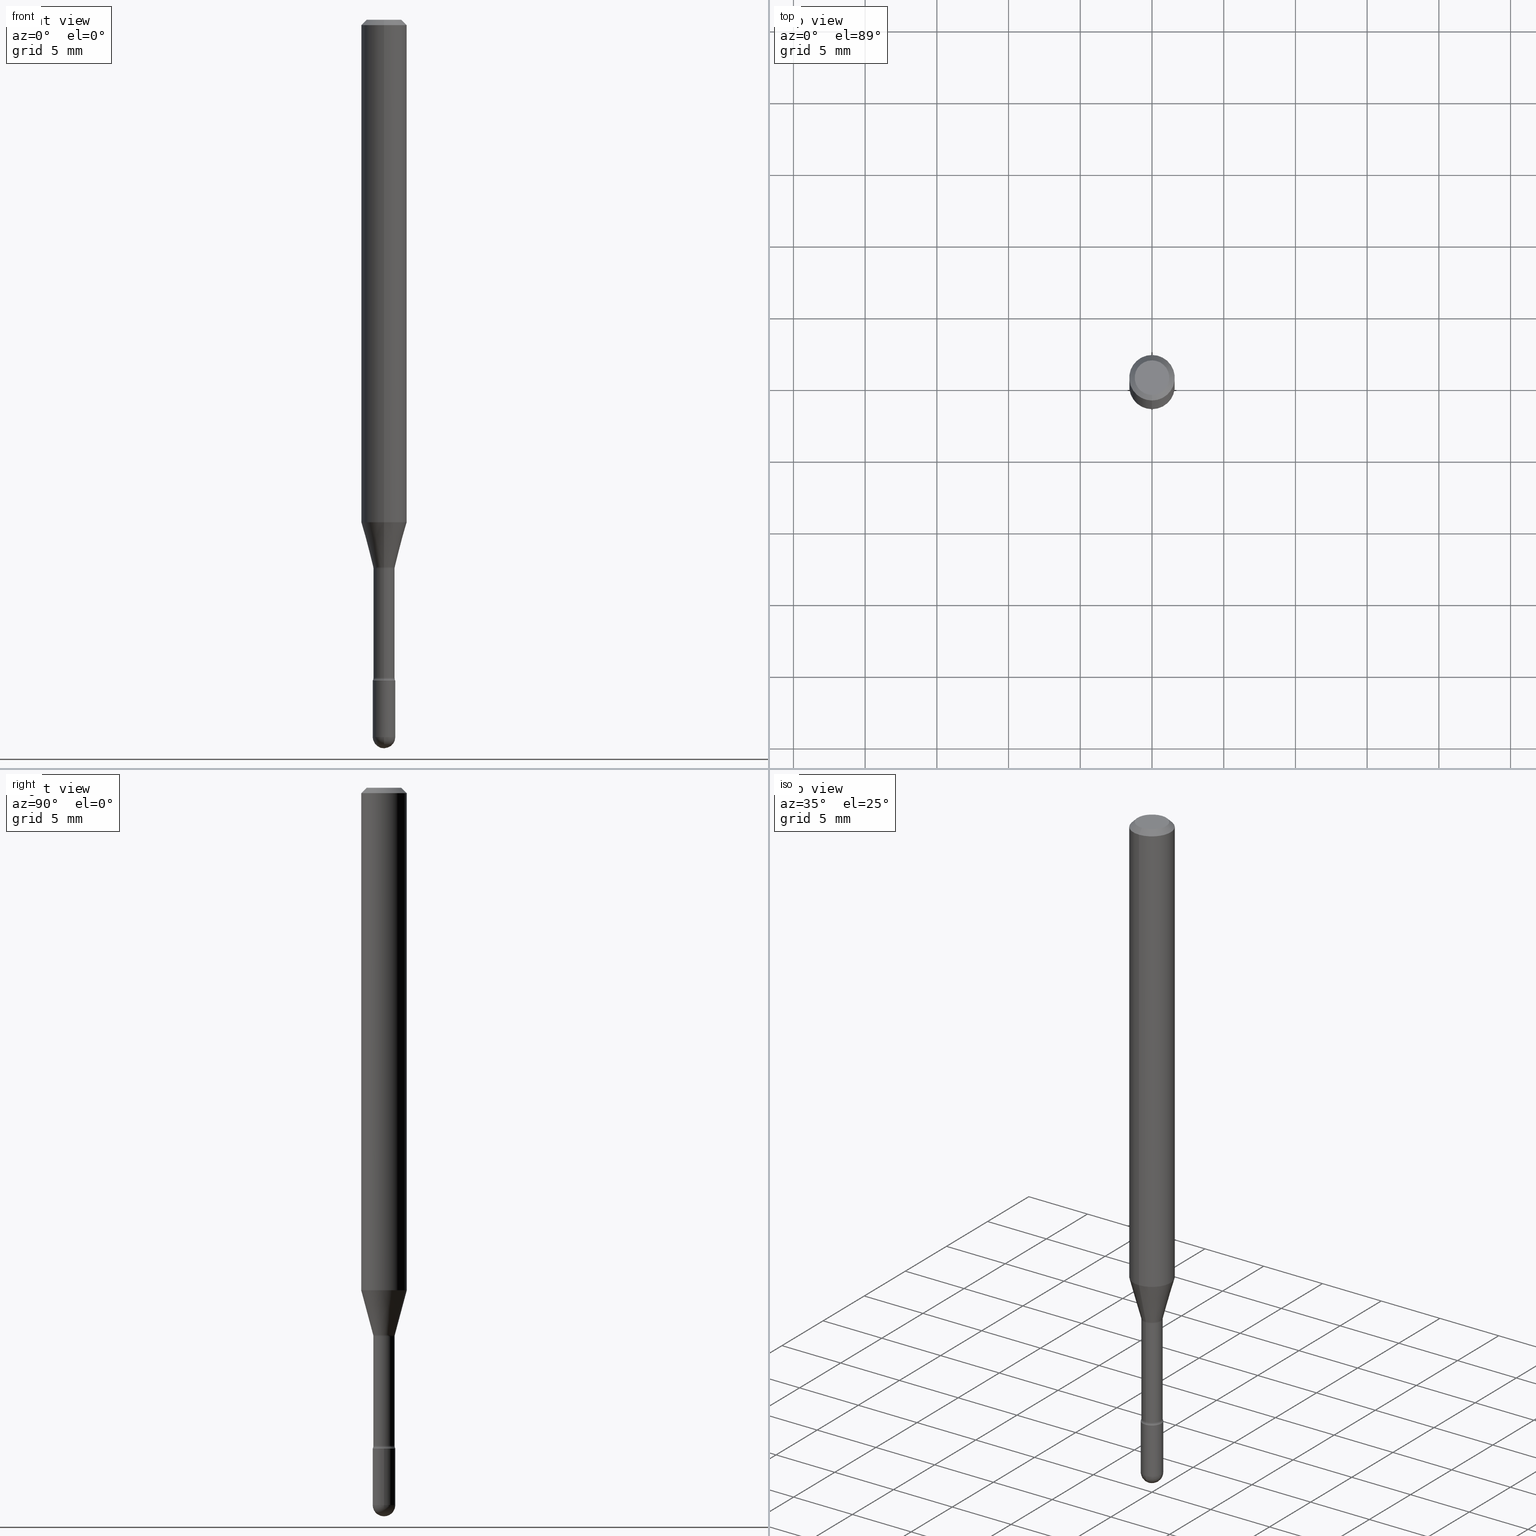
[diagram: canonical four-view strip — front | top / right | iso, engineering-drawing reading convention]
A machine part, canonical four-view strip (front | top / right | iso — engineering-drawing reading convention). The complete STEP part file that produces these views, byte-faithful:
ISO-10303-21;
HEADER;
FILE_DESCRIPTION (( 'STEP AP203' ),
    '1' );
FILE_NAME ('03764.STEP',
    '2024-04-09T20:22:56',
    ( '' ),
    ( '' ),
    'SwSTEP 2.0',
    'SolidWorks 2023',
    '' );
FILE_SCHEMA (( 'CONFIG_CONTROL_DESIGN' ));
ENDSEC;

DATA;
#1 = CIRCLE ( 'NONE', #325, 0.04749999999999999362 ) ;
#2 = CARTESIAN_POINT ( 'NONE',  ( -1.169113584055446105E-44, 1.669184350826100908E-30, 4.780733988912460139E-16 ) ) ;
#3 = FACE_OUTER_BOUND ( 'NONE', #494, .T. ) ;
#4 = FACE_OUTER_BOUND ( 'NONE', #164, .T. ) ;
#5 = EDGE_CURVE ( 'NONE', #31, #410, #154, .T. ) ;
#6 = FACE_OUTER_BOUND ( 'NONE', #62, .T. ) ;
#7 = VERTEX_POINT ( 'NONE', #123 ) ;
#8 = DIRECTION ( 'NONE',  ( 7.105427357601001859E-15, 1.000000000000000000, 0.000000000000000000 ) ) ;
#9 = MANIFOLD_SOLID_BREP ( 'Body-Move/Copy2[1]', #35 ) ;
#10 = DIRECTION ( 'NONE',  ( -6.982962677686265922E-15, -1.000000000000000000, 4.370956789862821150E-15 ) ) ;
#11 = ADVANCED_FACE ( 'NONE', ( #294 ), #305, .F. ) ;
#12 = FACE_OUTER_BOUND ( 'NONE', #126, .T. ) ;
#13 = ORIENTED_EDGE ( 'NONE', *, *, #33, .F. ) ;
#14 = FACE_OUTER_BOUND ( 'NONE', #291, .T. ) ;
#15 = EDGE_CURVE ( 'NONE', #37, #7, #128, .T. ) ;
#16 = ORIENTED_EDGE ( 'NONE', *, *, #125, .T. ) ;
#17 = SPHERICAL_SURFACE ( 'NONE', #220, 0.03100000000000001019 ) ;
#18 = EDGE_CURVE ( 'NONE', #7, #410, #513, .T. ) ;
#19 = SHAPE_DEFINITION_REPRESENTATION ( #397, #531 ) ;
#20 = EDGE_LOOP ( 'NONE', ( #159, #240 ) ) ;
#21 = ADVANCED_FACE ( 'NONE', ( #257 ), #428, .T. ) ;
#22 = ORIENTED_EDGE ( 'NONE', *, *, #287, .F. ) ;
#23 = DIRECTION ( 'NONE',  ( 1.000000000000000000, -6.982962677686266711E-15, 4.876176775795935232E-29 ) ) ;
#24 = AXIS2_PLACEMENT_3D ( 'NONE', #206, #514, #422 ) ;
#25 = ADVANCED_FACE ( 'NONE', ( #6 ), #529, .T. ) ;
#26 = DIRECTION ( 'NONE',  ( 6.982962677686265922E-15, 1.000000000000000000, 0.000000000000000000 ) ) ;
#27 = VERTEX_POINT ( 'NONE', #474 ) ;
#28 = PERSON_AND_ORGANIZATION ( #338, #429 ) ;
#29 = CIRCLE ( 'NONE', #451, 0.06250000000000000000 ) ;
#30 = CIRCLE ( 'NONE', #169, 0.04749999999999999362 ) ;
#31 = VERTEX_POINT ( 'NONE', #144 ) ;
#32 = DIRECTION ( 'NONE',  ( -6.982962677686265922E-15, -1.000000000000000000, 4.370956789862821150E-15 ) ) ;
#33 = EDGE_CURVE ( 'NONE', #37, #31, #319, .T. ) ;
#34 = EDGE_LOOP ( 'NONE', ( #252, #297, #282, #340 ) ) ;
#35 = CLOSED_SHELL ( 'NONE', ( #420, #135, #350, #273, #111 ) ) ;
#36 = APPROVAL ( #507, 'UNSPECIFIED' ) ;
#37 = VERTEX_POINT ( 'NONE', #229 ) ;
#38 = LOCAL_TIME ( 16, 22, 56.00000000000000000, #468 ) ;
#39 = DIRECTION ( 'NONE',  ( -6.982962677686265922E-15, -1.000000000000000000, 3.491516098891900395E-15 ) ) ;
#40 = DIRECTION ( 'NONE',  ( 7.105427357601001859E-15, 1.000000000000000000, 0.000000000000000000 ) ) ;
#41 = ADVANCED_FACE ( 'NONE', ( #243 ), #301, .F. ) ;
#42 = SPHERICAL_SURFACE ( 'NONE', #306, 0.03100000000000001019 ) ;
#43 = CIRCLE ( 'NONE', #347, 0.01500000000000001159 ) ;
#44 = ORIENTED_EDGE ( 'NONE', *, *, #87, .T. ) ;
#45 = DIRECTION ( 'NONE',  ( -2.445444533372823887E-29, 3.491516098891900000E-15, 1.000000000000000000 ) ) ;
#46 = PRODUCT_RELATED_PRODUCT_CATEGORY ( 'detail', '', ( #103 ) ) ;
#47 = DIRECTION ( 'NONE',  ( -2.438088387897960049E-29, 3.491481338843145188E-15, 1.000000000000000000 ) ) ;
#48 = AXIS2_PLACEMENT_3D ( 'NONE', #488, #269, #132 ) ;
#49 = CARTESIAN_POINT ( 'NONE',  ( 3.673283897115995853E-29, -5.244580152015073878E-15, -1.502092501787273271 ) ) ;
#50 = EDGE_CURVE ( 'NONE', #446, #497, #30, .T. ) ;
#51 = CARTESIAN_POINT ( 'NONE',  ( 3.137046178381209758E-16, 0.04414999999999474206, -1.505974787463811415 ) ) ;
#52 = CARTESIAN_POINT ( 'NONE',  ( 4.418432751852640684E-29, -6.308350963630715621E-15, -1.806783525791634704 ) ) ;
#53 = APPROVAL_ROLE ( '' ) ;
#54 = DIRECTION ( 'NONE',  ( -2.445444533372824167E-29, 3.491516098891900395E-15, 1.000000000000000000 ) ) ;
#55 = EDGE_CURVE ( 'NONE', #65, #91, #61, .T. ) ;
#56 = ORIENTED_EDGE ( 'NONE', *, *, #192, .T. ) ;
#57 = DIRECTION ( 'NONE',  ( 6.982962677686265922E-15, 1.000000000000000000, -3.483106191921935554E-15 ) ) ;
#58 = DIRECTION ( 'NONE',  ( -1.000000000000000000, 6.982962677686265922E-15, -4.883557194083112340E-29 ) ) ;
#59 = AXIS2_PLACEMENT_3D ( 'NONE', #356, #216, #183 ) ;
#60 = DIRECTION ( 'NONE',  ( -1.000000000000000000, 6.982962677686265922E-15, -4.883557194083112340E-29 ) ) ;
#61 = LINE ( 'NONE', #400, #364 ) ;
#62 = EDGE_LOOP ( 'NONE', ( #530, #542, #462, #373 ) ) ;
#63 = ADVANCED_FACE ( 'NONE', ( #247 ), #440, .T. ) ;
#64 = DATE_AND_TIME ( #412, #469 ) ;
#65 = VERTEX_POINT ( 'NONE', #504 ) ;
#66 = CARTESIAN_POINT ( 'NONE',  ( 3.668166800059256219E-31, -5.237274148337879238E-17, -0.01500000000000008271 ) ) ;
#67 = EDGE_LOOP ( 'NONE', ( #502, #156 ) ) ;
#68 = VECTOR ( 'NONE', #309, 39.37007874015748854 ) ;
#69 = ADVANCED_FACE ( 'NONE', ( #290 ), #280, .F. ) ;
#70 = EDGE_CURVE ( 'NONE', #81, #441, #452, .T. ) ;
#71 = ORIENTED_EDGE ( 'NONE', *, *, #55, .T. ) ;
#72 = CARTESIAN_POINT ( 'NONE',  ( 4.815128079378533515E-29, -6.874726756182153211E-15, -1.968999999999999861 ) ) ;
#73 = EDGE_LOOP ( 'NONE', ( #516, #255, #161, #13 ) ) ;
#74 = CC_DESIGN_PERSON_AND_ORGANIZATION_ASSIGNMENT ( #149, #439, ( #335 ) ) ;
#75 = VECTOR ( 'NONE', #258, 39.37007874015748143 ) ;
#76 = EDGE_LOOP ( 'NONE', ( #88, #157, #421, #112 ) ) ;
#77 = ADVANCED_FACE ( 'NONE', ( #372 ), #78, .T. ) ;
#78 = CONICAL_SURFACE ( 'NONE', #233, 0.06250000000000000000, 0.7853981633974483900 ) ;
#79 = LENGTH_MEASURE_WITH_UNIT ( LENGTH_MEASURE( 0.02539999999999999897 ), #458 );
#80 = CALENDAR_DATE ( 2024, 9, 4 ) ;
#81 = VERTEX_POINT ( 'NONE', #528 ) ;
#82 = CARTESIAN_POINT ( 'NONE',  ( 4.364351673553919652E-16, 0.06249999999999995143, -0.01500000000000030129 ) ) ;
#83 = FACE_OUTER_BOUND ( 'NONE', #20, .T. ) ;
#84 = DIRECTION ( 'NONE',  ( -2.445444533372824167E-29, 3.491516098891900395E-15, 1.000000000000000000 ) ) ;
#85 = CALENDAR_DATE ( 2024, 9, 4 ) ;
#86 = AXIS2_PLACEMENT_3D ( 'NONE', #225, #313, #32 ) ;
#87 = EDGE_CURVE ( 'NONE', #81, #251, #143, .T. ) ;
#88 = ORIENTED_EDGE ( 'NONE', *, *, #50, .F. ) ;
#89 = CC_DESIGN_APPROVAL ( #277, ( #98 ) ) ;
#90 = CARTESIAN_POINT ( 'NONE',  ( 3.316907271900976096E-16, 0.04749999999999999362, 3.181699426364303002E-17 ) ) ;
#91 = VERTEX_POINT ( 'NONE', #176 ) ;
#92 = DIRECTION ( 'NONE',  ( -6.982962677686265922E-15, -1.000000000000000000, 0.000000000000000000 ) ) ;
#93 = FACE_OUTER_BOUND ( 'NONE', #205, .T. ) ;
#94 = CC_DESIGN_DATE_AND_TIME_ASSIGNMENT ( #381, #454, ( #131 ) ) ;
#95 = DIRECTION ( 'NONE',  ( -1.807323732225328562E-15, -0.2588190451025179639, 0.9659258262890690894 ) ) ;
#96 = CARTESIAN_POINT ( 'NONE',  ( 4.436080414419837365E-29, -6.333547148661465016E-15, -1.813999999999999835 ) ) ;
#97 = CARTESIAN_POINT ( 'NONE',  ( 4.418388896135229414E-29, -6.308413767514161632E-15, -1.806783525791634704 ) ) ;
#98 = SECURITY_CLASSIFICATION ( '', '', #139 ) ;
#99 = CIRCLE ( 'NONE', #503, 0.03099999999999999978 ) ;
#100 = DIRECTION ( 'NONE',  ( 6.982962677686265922E-15, 1.000000000000000000, 0.000000000000000000 ) ) ;
#101 = ADVANCED_FACE ( 'NONE', ( #4 ), #551, .T. ) ;
#102 = DIRECTION ( 'NONE',  ( -2.445444533372823887E-29, 3.491516098891900000E-15, 1.000000000000000000 ) ) ;
#103 = PRODUCT ( '03764', '03764', '', ( #324 ) ) ;
#104 = VECTOR ( 'NONE', #54, 39.37007874015748143 ) ;
#105 = ORIENTED_EDGE ( 'NONE', *, *, #260, .F. ) ;
#106 = EDGE_CURVE ( 'NONE', #562, #91, #480, .T. ) ;
#107 = ORIENTED_EDGE ( 'NONE', *, *, #106, .T. ) ;
#108 = CC_DESIGN_PERSON_AND_ORGANIZATION_ASSIGNMENT ( #307, #113, ( #98 ) ) ;
#109 = CARTESIAN_POINT ( 'NONE',  ( 2.023376353671711441E-45, -2.889234476176621046E-31, -8.274538096922955789E-17 ) ) ;
#110 = ORIENTED_EDGE ( 'NONE', *, *, #204, .T. ) ;
#111 = ADVANCED_FACE ( 'NONE', ( #388 ), #178, .T. ) ;
#112 = ORIENTED_EDGE ( 'NONE', *, *, #417, .F. ) ;
#113 = PERSON_AND_ORGANIZATION_ROLE ( 'classification_officer' ) ;
#114 = DIRECTION ( 'NONE',  ( 1.000000000000000000, -6.982962677686270655E-15, 0.000000000000000000 ) ) ;
#115 = DIRECTION ( 'NONE',  ( -2.445444533372823887E-29, 3.491516098891900000E-15, 1.000000000000000000 ) ) ;
#116 = AXIS2_PLACEMENT_3D ( 'NONE', #52, #228, #533 ) ;
#117 = APPROVAL_ROLE ( '' ) ;
#118 = EDGE_LOOP ( 'NONE', ( #105, #415, #450, #303 ) ) ;
#119 = AXIS2_PLACEMENT_3D ( 'NONE', #302, #167, #39 ) ;
#120 = APPROVAL_PERSON_ORGANIZATION ( #28, #36, #53 ) ;
#121 = AXIS2_PLACEMENT_3D ( 'NONE', #472, #566, #263 ) ;
#122 = ORIENTED_EDGE ( 'NONE', *, *, #125, .F. ) ;
#123 = CARTESIAN_POINT ( 'NONE',  ( 2.136957277798944871E-16, 0.02914999999999371566, -1.806783525791634704 ) ) ;
#124 = VECTOR ( 'NONE', #346, 39.37007874015748143 ) ;
#125 = EDGE_CURVE ( 'NONE', #538, #500, #433, .T. ) ;
#126 = EDGE_LOOP ( 'NONE', ( #525, #44, #544, #22 ) ) ;
#127 = APPROVAL_DATE_TIME ( #489, #36 ) ;
#128 = CIRCLE ( 'NONE', #194, 0.02915000000000002311 ) ;
#129 =( GEOMETRIC_REPRESENTATION_CONTEXT ( 3 ) GLOBAL_UNCERTAINTY_ASSIGNED_CONTEXT ( ( #200 ) ) GLOBAL_UNIT_ASSIGNED_CONTEXT ( ( #515, #259, #288 ) ) REPRESENTATION_CONTEXT ( 'NONE', 'WORKASPACE' ) );
#130 = AXIS2_PLACEMENT_3D ( 'NONE', #532, #524, #360 ) ;
#131 = PRODUCT_DEFINITION ( 'UNKNOWN', '', #335, #180 ) ;
#132 = DIRECTION ( 'NONE',  ( -7.105427357601001070E-15, -1.000000000000000000, 0.000000000000000000 ) ) ;
#133 = DIRECTION ( 'NONE',  ( -2.445444533372823887E-29, 3.491516098891900000E-15, 1.000000000000000000 ) ) ;
#134 = CARTESIAN_POINT ( 'NONE',  ( 0.03099999999999999978, -6.550018991669739348E-15, -1.813999999999999835 ) ) ;
#135 = ADVANCED_FACE ( 'NONE', ( #12 ), #42, .T. ) ;
#136 = DIRECTION ( 'NONE',  ( -6.982962677686265922E-15, -1.000000000000000000, 0.000000000000000000 ) ) ;
#137 = CIRCLE ( 'NONE', #86, 0.06250000000000000000 ) ;
#138 = PLANE ( 'NONE',  #256 ) ;
#139 = SECURITY_CLASSIFICATION_LEVEL ( 'unclassified' ) ;
#140 = CARTESIAN_POINT ( 'NONE',  ( 3.682777811400677476E-29, -5.258135214955204492E-15, -1.505974787463811193 ) ) ;
#141 = LINE ( 'NONE', #386, #430 ) ;
#142 = CARTESIAN_POINT ( 'NONE',  ( -3.082978022198118430E-16, -0.04415000000000526142, -1.505974787463810971 ) ) ;
#143 = CIRCLE ( 'NONE', #48, 0.03100000000000001019 ) ;
#144 = CARTESIAN_POINT ( 'NONE',  ( -2.035533620545178324E-16, -0.02915000000000525851, -1.505974787463811193 ) ) ;
#145 = CARTESIAN_POINT ( 'NONE',  ( -2.164718430082299331E-16, -0.03100000000000634193, -1.813999999999999835 ) ) ;
#146 = CYLINDRICAL_SURFACE ( 'NONE', #219, 0.02915000000000001271 ) ;
#147 = EDGE_LOOP ( 'NONE', ( #418, #413, #353, #237, #554 ) ) ;
#148 = DIRECTION ( 'NONE',  ( -4.851104656540964275E-15, -0.7071067811865500152, -0.7071067811865450192 ) ) ;
#149 = PERSON_AND_ORGANIZATION ( #338, #429 ) ;
#150 = AXIS2_PLACEMENT_3D ( 'NONE', #332, #555, #23 ) ;
#151 = ORIENTED_EDGE ( 'NONE', *, *, #442, .T. ) ;
#152 = DIRECTION ( 'NONE',  ( 1.000000000000000000, -6.982962677686270655E-15, 0.000000000000000000 ) ) ;
#153 = APPLICATION_PROTOCOL_DEFINITION ( 'international standard', 'config_control_design', 1994, #390 ) ;
#154 = CIRCLE ( 'NONE', #443, 0.02914999999999999883 ) ;
#155 = AXIS2_PLACEMENT_3D ( 'NONE', #383, #560, #179 ) ;
#156 = ORIENTED_EDGE ( 'NONE', *, *, #50, .T. ) ;
#157 = ORIENTED_EDGE ( 'NONE', *, *, #165, .T. ) ;
#158 = AXIS2_PLACEMENT_3D ( 'NONE', #471, #345, #523 ) ;
#159 = ORIENTED_EDGE ( 'NONE', *, *, #453, .F. ) ;
#160 = CARTESIAN_POINT ( 'NONE',  ( 4.815128079378533515E-29, -6.874726756182153211E-15, -1.968999999999999861 ) ) ;
#161 = ORIENTED_EDGE ( 'NONE', *, *, #5, .F. ) ;
#162 = CIRCLE ( 'NONE', #212, 0.03099999999999999978 ) ;
#163 = DIRECTION ( 'NONE',  ( 1.000000000000000000, -6.982962677686265922E-15, 4.883557194083112340E-29 ) ) ;
#164 = EDGE_LOOP ( 'NONE', ( #122, #211, #110, #278 ) ) ;
#165 = EDGE_CURVE ( 'NONE', #446, #262, #141, .T. ) ;
#166 = VERTEX_POINT ( 'NONE', #223 ) ;
#167 = DIRECTION ( 'NONE',  ( -2.445444533372823887E-29, 3.491516098891900000E-15, 1.000000000000000000 ) ) ;
#168 = CARTESIAN_POINT ( 'NONE',  ( 3.840629472727447874E-16, 0.04749999999999999362, -2.485923956665947867E-16 ) ) ;
#169 = AXIS2_PLACEMENT_3D ( 'NONE', #109, #549, #323 ) ;
#170 = ORIENTED_EDGE ( 'NONE', *, *, #260, .T. ) ;
#171 = ORIENTED_EDGE ( 'NONE', *, *, #106, .F. ) ;
#172 = DIRECTION ( 'NONE',  ( -2.445444533372823887E-29, 3.491516098891900000E-15, 1.000000000000000000 ) ) ;
#173 = CARTESIAN_POINT ( 'NONE',  ( 4.815128079378533515E-29, -6.874726756182153211E-15, -1.968999999999999861 ) ) ;
#174 = CIRCLE ( 'NONE', #371, 0.02966111260566398414 ) ;
#175 = CARTESIAN_POINT ( 'NONE',  ( 3.274220454076509529E-16, 0.02966111260565873833, -1.502092501787273271 ) ) ;
#176 = CARTESIAN_POINT ( 'NONE',  ( -0.03099999999999999978, -6.383868704336178649E-15, -1.813999999999999835 ) ) ;
#177 = ORIENTED_EDGE ( 'NONE', *, *, #539, .F. ) ;
#178 = CYLINDRICAL_SURFACE ( 'NONE', #130, 0.03099999999999999978 ) ;
#179 = DIRECTION ( 'NONE',  ( 6.982962677686265922E-15, 1.000000000000000000, -3.483106191921935554E-15 ) ) ;
#180 = DESIGN_CONTEXT ( 'detailed design', #276, 'design' ) ;
#181 = DIRECTION ( 'NONE',  ( -2.445468806185136597E-29, 3.491481338843145583E-15, 1.000000000000000000 ) ) ;
#182 = LINE ( 'NONE', #82, #249 ) ;
#183 = DIRECTION ( 'NONE',  ( 1.000000000000000000, -6.982962677686270655E-15, 0.000000000000000000 ) ) ;
#184 = EDGE_CURVE ( 'NONE', #538, #196, #174, .T. ) ;
#185 = CARTESIAN_POINT ( 'NONE',  ( 4.815128079378534076E-29, -6.874726756182154000E-15, -1.969000000000000306 ) ) ;
#186 = EDGE_LOOP ( 'NONE', ( #107, #389 ) ) ;
#187 = ORIENTED_EDGE ( 'NONE', *, *, #316, .F. ) ;
#188 = PERSON_AND_ORGANIZATION ( #338, #429 ) ;
#189 = CC_DESIGN_PERSON_AND_ORGANIZATION_ASSIGNMENT ( #334, #564, ( #131 ) ) ;
#190 = CARTESIAN_POINT ( 'NONE',  ( 0.03099999999999999978, -2.164718430082742572E-16, 1.511614800496739984E-30 ) ) ;
#191 = CARTESIAN_POINT ( 'NONE',  ( 2.164718430083224270E-16, 0.03099999999999312680, -1.969000000000000306 ) ) ;
#192 = EDGE_CURVE ( 'NONE', #538, #410, #246, .T. ) ;
#193 = CARTESIAN_POINT ( 'NONE',  ( 4.418432751852640684E-29, -6.308350963630715621E-15, -1.806783525791634704 ) ) ;
#194 = AXIS2_PLACEMENT_3D ( 'NONE', #379, #558, #341 ) ;
#195 = APPROVAL_PERSON_ORGANIZATION ( #419, #490, #117 ) ;
#196 = VERTEX_POINT ( 'NONE', #424 ) ;
#197 = CIRCLE ( 'NONE', #253, 0.02915000000000002311 ) ;
#198 = DIRECTION ( 'NONE',  ( -2.445444533372823326E-29, 3.491516098891900395E-15, 1.000000000000000000 ) ) ;
#199 = VERTEX_POINT ( 'NONE', #145 ) ;
#200 = UNCERTAINTY_MEASURE_WITH_UNIT (LENGTH_MEASURE( 1.000000000000000082E-05 ), #515, 'distance_accuracy_value', 'NONE');
#201 = EDGE_LOOP ( 'NONE', ( #505, #402, #235, #289 ) ) ;
#202 = DIRECTION ( 'NONE',  ( 4.937700262164548042E-15, 0.7071067811865451302, -0.7071067811865499042 ) ) ;
#203 = AXIS2_PLACEMENT_3D ( 'NONE', #447, #238, #404 ) ;
#204 = EDGE_CURVE ( 'NONE', #196, #363, #227, .T. ) ;
#205 = EDGE_LOOP ( 'NONE', ( #470, #170, #361, #177 ) ) ;
#206 = CARTESIAN_POINT ( 'NONE',  ( 4.436036383538302532E-29, -6.333610203389905652E-15, -1.813999999999999835 ) ) ;
#207 = EDGE_CURVE ( 'NONE', #27, #441, #342, .T. ) ;
#208 = AXIS2_PLACEMENT_3D ( 'NONE', #563, #172, #92 ) ;
#209 = PERSON_AND_ORGANIZATION ( #338, #429 ) ;
#210 = AXIS2_PLACEMENT_3D ( 'NONE', #320, #437, #315 ) ;
#211 = ORIENTED_EDGE ( 'NONE', *, *, #184, .T. ) ;
#212 = AXIS2_PLACEMENT_3D ( 'NONE', #333, #284, #241 ) ;
#213 = CARTESIAN_POINT ( 'NONE',  ( 0.000000000000000000, 0.000000000000000000, 0.000000000000000000 ) ) ;
#214 = COORDINATED_UNIVERSAL_TIME_OFFSET ( 5, 0, .BEHIND. ) ;
#215 = CIRCLE ( 'NONE', #537, 0.01500000000000001853 ) ;
#216 = DIRECTION ( 'NONE',  ( -2.445468806185136597E-29, 3.491481338843145583E-15, 1.000000000000000000 ) ) ;
#217 = DIRECTION ( 'NONE',  ( -2.445444533372823887E-29, 3.491516098891900000E-15, 1.000000000000000000 ) ) ;
#218 = DIRECTION ( 'NONE',  ( -6.982962677686265922E-15, -1.000000000000000000, 0.000000000000000000 ) ) ;
#219 = AXIS2_PLACEMENT_3D ( 'NONE', #396, #427, #392 ) ;
#220 = AXIS2_PLACEMENT_3D ( 'NONE', #160, #60, #543 ) ;
#221 = DIRECTION ( 'NONE',  ( 1.000000000000000000, -6.982962677686265922E-15, 4.876176775795935793E-29 ) ) ;
#222 = ORIENTED_EDGE ( 'NONE', *, *, #165, .F. ) ;
#223 = CARTESIAN_POINT ( 'NONE',  ( 2.202682480856753802E-16, 0.03099999999999367151, -1.813999999999999835 ) ) ;
#224 = FACE_OUTER_BOUND ( 'NONE', #118, .T. ) ;
#225 = CARTESIAN_POINT ( 'NONE',  ( 3.373579027950668951E-29, -4.816672521591835884E-15, -1.379536105567578330 ) ) ;
#226 = EDGE_CURVE ( 'NONE', #251, #27, #522, .T. ) ;
#227 = LINE ( 'NONE', #395, #512 ) ;
#228 = DIRECTION ( 'NONE',  ( -2.445444533372823887E-29, 3.491516098891900000E-15, 1.000000000000000000 ) ) ;
#229 = CARTESIAN_POINT ( 'NONE',  ( -2.035533620545106341E-16, -0.02915000000000633404, -1.806783525791634704 ) ) ;
#230 = EDGE_CURVE ( 'NONE', #363, #262, #431, .T. ) ;
#231 = DIRECTION ( 'NONE',  ( -6.982962677686266711E-15, -1.000000000000000000, 3.491516098891899606E-15 ) ) ;
#232 = CARTESIAN_POINT ( 'NONE',  ( 3.682814365644040998E-29, -5.258082867198169507E-15, -1.505974787463811193 ) ) ;
#233 = AXIS2_PLACEMENT_3D ( 'NONE', #411, #359, #57 ) ;
#234 = DIRECTION ( 'NONE',  ( -2.445444533372823887E-29, 3.491516098891900000E-15, 1.000000000000000000 ) ) ;
#235 = ORIENTED_EDGE ( 'NONE', *, *, #230, .T. ) ;
#236 = CARTESIAN_POINT ( 'NONE',  ( -1.169113584055446105E-44, 1.669184350826100908E-30, 4.780733988912460139E-16 ) ) ;
#237 = ORIENTED_EDGE ( 'NONE', *, *, #316, .T. ) ;
#238 = DIRECTION ( 'NONE',  ( -1.000000000000000000, 6.982962677686265922E-15, -4.883557194083112340E-29 ) ) ;
#239 = CIRCLE ( 'NONE', #456, 0.06250000000000000000 ) ;
#240 = ORIENTED_EDGE ( 'NONE', *, *, #449, .F. ) ;
#241 = DIRECTION ( 'NONE',  ( 1.000000000000000000, -6.982962677686270655E-15, 0.000000000000000000 ) ) ;
#242 = APPROVAL_DATE_TIME ( #495, #490 ) ;
#243 = FACE_OUTER_BOUND ( 'NONE', #67, .T. ) ;
#244 = LOCAL_TIME ( 16, 22, 56.00000000000000000, #214 ) ;
#245 = EDGE_CURVE ( 'NONE', #196, #538, #493, .T. ) ;
#246 = CIRCLE ( 'NONE', #387, 0.01500000000000001853 ) ;
#247 = FACE_OUTER_BOUND ( 'NONE', #201, .T. ) ;
#248 = EDGE_LOOP ( 'NONE', ( #304, #71, #171, #187, #466 ) ) ;
#249 = VECTOR ( 'NONE', #202, 39.37007874015748143 ) ;
#250 = DIRECTION ( 'NONE',  ( -2.445444533372823887E-29, 3.491516098891900000E-15, 1.000000000000000000 ) ) ;
#251 = VERTEX_POINT ( 'NONE', #477 ) ;
#252 = ORIENTED_EDGE ( 'NONE', *, *, #499, .F. ) ;
#253 = AXIS2_PLACEMENT_3D ( 'NONE', #97, #398, #267 ) ;
#254 = FACE_OUTER_BOUND ( 'NONE', #329, .T. ) ;
#255 = ORIENTED_EDGE ( 'NONE', *, *, #18, .T. ) ;
#256 = AXIS2_PLACEMENT_3D ( 'NONE', #96, #47, #221 ) ;
#257 = FACE_OUTER_BOUND ( 'NONE', #76, .T. ) ;
#258 = DIRECTION ( 'NONE',  ( -2.445468806185136877E-29, 3.491481338843145188E-15, 1.000000000000000000 ) ) ;
#259 =( NAMED_UNIT ( * ) PLANE_ANGLE_UNIT ( ) SI_UNIT ( $, .RADIAN. ) );
#260 = EDGE_CURVE ( 'NONE', #7, #37, #197, .T. ) ;
#261 = ORIENTED_EDGE ( 'NONE', *, *, #226, .F. ) ;
#262 = VERTEX_POINT ( 'NONE', #391 ) ;
#263 = DIRECTION ( 'NONE',  ( -6.982962677686265922E-15, -1.000000000000000000, 0.000000000000000000 ) ) ;
#264 = CYLINDRICAL_SURFACE ( 'NONE', #311, 0.02915000000000001271 ) ;
#265 = TOROIDAL_SURFACE ( 'NONE', #339, 0.04415000000000000174, 0.01500000000000002373 ) ;
#266 = DIRECTION ( 'NONE',  ( 1.000000000000000000, -6.982962677686270655E-15, 0.000000000000000000 ) ) ;
#267 = DIRECTION ( 'NONE',  ( -6.982962677686266711E-15, -1.000000000000000000, 0.000000000000000000 ) ) ;
#268 = AXIS2_PLACEMENT_3D ( 'NONE', #66, #279, #550 ) ;
#269 = DIRECTION ( 'NONE',  ( -1.000000000000000000, 7.105427357601001070E-15, -4.926315508542082329E-29 ) ) ;
#270 = FACE_OUTER_BOUND ( 'NONE', #73, .T. ) ;
#271 = EDGE_CURVE ( 'NONE', #497, #446, #1, .T. ) ;
#272 = DIRECTION ( 'NONE',  ( -2.445444533372823887E-29, 3.491516098891900000E-15, 1.000000000000000000 ) ) ;
#273 = ADVANCED_FACE ( 'NONE', ( #14 ), #17, .T. ) ;
#274 = DIRECTION ( 'NONE',  ( 1.000000000000000000, -7.105427357601001070E-15, 4.926315934229907018E-29 ) ) ;
#275 = CIRCLE ( 'NONE', #203, 0.01500000000000001159 ) ;
#276 = APPLICATION_CONTEXT ( 'configuration controlled 3d designs of mechanical parts and assemblies' ) ;
#277 = APPROVAL ( #365, 'UNSPECIFIED' ) ;
#278 = ORIENTED_EDGE ( 'NONE', *, *, #362, .F. ) ;
#279 = DIRECTION ( 'NONE',  ( -2.445444533372823887E-29, 3.491516098891900000E-15, 1.000000000000000000 ) ) ;
#280 = TOROIDAL_SURFACE ( 'NONE', #380, 0.04415000000000003644, 0.01500000000000001332 ) ;
#281 = DIRECTION ( 'NONE',  ( -6.982962677686265922E-15, -1.000000000000000000, 3.491516098891900000E-15 ) ) ;
#282 = ORIENTED_EDGE ( 'NONE', *, *, #308, .T. ) ;
#283 = EDGE_CURVE ( 'NONE', #262, #357, #541, .T. ) ;
#284 = DIRECTION ( 'NONE',  ( -2.445468806185136597E-29, 3.491481338843145583E-15, 1.000000000000000000 ) ) ;
#285 = PERSON_AND_ORGANIZATION_ROLE ( 'design_owner' ) ;
#286 = ORIENTED_EDGE ( 'NONE', *, *, #539, .T. ) ;
#287 = EDGE_CURVE ( 'NONE', #441, #65, #99, .T. ) ;
#288 =( NAMED_UNIT ( * ) SI_UNIT ( $, .STERADIAN. ) SOLID_ANGLE_UNIT ( ) );
#289 = ORIENTED_EDGE ( 'NONE', *, *, #442, .F. ) ;
#290 = FACE_OUTER_BOUND ( 'NONE', #34, .T. ) ;
#291 = EDGE_LOOP ( 'NONE', ( #457, #367, #336, #261 ) ) ;
#292 = PLANE ( 'NONE',  #355 ) ;
#293 = APPROVAL_ROLE ( '' ) ;
#294 = FACE_OUTER_BOUND ( 'NONE', #448, .T. ) ;
#295 = DIRECTION ( 'NONE',  ( -6.982962677686265922E-15, -1.000000000000000000, 3.483106191921935554E-15 ) ) ;
#296 = CC_DESIGN_SECURITY_CLASSIFICATION ( #98, ( #335 ) ) ;
#297 = ORIENTED_EDGE ( 'NONE', *, *, #15, .F. ) ;
#298 = AXIS2_PLACEMENT_3D ( 'NONE', #236, #234, #281 ) ;
#299 = DIRECTION ( 'NONE',  ( -2.445468806185136597E-29, 3.491481338843145583E-15, 1.000000000000000000 ) ) ;
#300 = EDGE_CURVE ( 'NONE', #65, #251, #162, .T. ) ;
#301 = PLANE ( 'NONE',  #317 ) ;
#302 = CARTESIAN_POINT ( 'NONE',  ( 3.682814365644040998E-29, -5.258082867198169507E-15, -1.505974787463811193 ) ) ;
#303 = ORIENTED_EDGE ( 'NONE', *, *, #308, .F. ) ;
#304 = ORIENTED_EDGE ( 'NONE', *, *, #287, .T. ) ;
#305 = TOROIDAL_SURFACE ( 'NONE', #119, 0.04415000000000000174, 0.01500000000000002373 ) ;
#306 = AXIS2_PLACEMENT_3D ( 'NONE', #173, #321, #100 ) ;
#307 = PERSON_AND_ORGANIZATION ( #338, #429 ) ;
#308 = EDGE_CURVE ( 'NONE', #37, #199, #275, .T. ) ;
#309 = DIRECTION ( 'NONE',  ( 1.839019923739598738E-15, 0.2588190451025247363, 0.9659258262890673130 ) ) ;
#310 = DIRECTION ( 'NONE',  ( -6.982962677686265922E-15, -1.000000000000000000, 3.491516098891900395E-15 ) ) ;
#311 = AXIS2_PLACEMENT_3D ( 'NONE', #2, #352, #475 ) ;
#312 = DIRECTION ( 'NONE',  ( -2.445444533372824167E-29, 3.491516098891900395E-15, 1.000000000000000000 ) ) ;
#313 = DIRECTION ( 'NONE',  ( -2.445444533372823887E-29, 3.491516098891900000E-15, 1.000000000000000000 ) ) ;
#314 = DIRECTION ( 'NONE',  ( -6.982962677686265922E-15, -1.000000000000000000, 0.000000000000000000 ) ) ;
#315 = DIRECTION ( 'NONE',  ( 1.000000000000000000, -6.982962677686270655E-15, 0.000000000000000000 ) ) ;
#316 = EDGE_CURVE ( 'NONE', #27, #562, #501, .T. ) ;
#317 = AXIS2_PLACEMENT_3D ( 'NONE', #90, #322, #520 ) ;
#318 = ADVANCED_FACE ( 'NONE', ( #254 ), #265, .F. ) ;
#319 = LINE ( 'NONE', #435, #104 ) ;
#320 = CARTESIAN_POINT ( 'NONE',  ( 4.815128079378534076E-29, -6.874726756182154000E-15, -1.969000000000000306 ) ) ;
#321 = DIRECTION ( 'NONE',  ( -1.000000000000000000, 6.982962677686265922E-15, -4.883557194083112340E-29 ) ) ;
#322 = DIRECTION ( 'NONE',  ( 2.445444533372823326E-29, -3.491516098891900395E-15, -1.000000000000000000 ) ) ;
#323 = DIRECTION ( 'NONE',  ( -6.982962677686266711E-15, -1.000000000000000000, 3.491516098891899606E-15 ) ) ;
#324 = MECHANICAL_CONTEXT ( 'NONE', #390, 'mechanical' ) ;
#325 = AXIS2_PLACEMENT_3D ( 'NONE', #481, #483, #231 ) ;
#326 = APPROVAL_DATE_TIME ( #64, #277 ) ;
#327 = DIMENSIONAL_EXPONENTS ( 1.000000000000000000, 0.000000000000000000, 0.000000000000000000, 0.000000000000000000, 0.000000000000000000, 0.000000000000000000, 0.000000000000000000 ) ;
#328 = COORDINATED_UNIVERSAL_TIME_OFFSET ( 5, 0, .BEHIND. ) ;
#329 = EDGE_LOOP ( 'NONE', ( #509, #56, #286, #491 ) ) ;
#330 = AXIS2_PLACEMENT_3D ( 'NONE', #548, #299, #114 ) ;
#331 = ORIENTED_EDGE ( 'NONE', *, *, #417, .T. ) ;
#332 = CARTESIAN_POINT ( 'NONE',  ( 0.000000000000000000, 0.000000000000000000, 0.000000000000000000 ) ) ;
#333 = CARTESIAN_POINT ( 'NONE',  ( 4.815128079378534076E-29, -6.874726756182154000E-15, -1.969000000000000306 ) ) ;
#334 = PERSON_AND_ORGANIZATION ( #338, #429 ) ;
#335 = PRODUCT_DEFINITION_FORMATION_WITH_SPECIFIED_SOURCE ( 'ANY', '', #103, .NOT_KNOWN. ) ;
#336 = ORIENTED_EDGE ( 'NONE', *, *, #207, .F. ) ;
#337 = ORIENTED_EDGE ( 'NONE', *, *, #192, .F. ) ;
#338 = PERSON ( 'UNSPECIFIED', 'UNSPECIFIED', 'UNSPECIFIED', ('UNSPECIFIED'), ('UNSPECIFIED'), ('UNSPECIFIED') ) ;
#339 = AXIS2_PLACEMENT_3D ( 'NONE', #232, #133, #310 ) ;
#340 = ORIENTED_EDGE ( 'NONE', *, *, #453, .T. ) ;
#341 = DIRECTION ( 'NONE',  ( -6.982962677686266711E-15, -1.000000000000000000, 0.000000000000000000 ) ) ;
#342 = CIRCLE ( 'NONE', #461, 0.03099999999999999978 ) ;
#343 = CARTESIAN_POINT ( 'NONE',  ( 4.440892098500625669E-16, 0.06250000000000000000, 2.598536427105023132E-16 ) ) ;
#344 = CARTESIAN_POINT ( 'NONE',  ( 3.682777811400677476E-29, -5.258135214955204492E-15, -1.505974787463811193 ) ) ;
#345 = DIRECTION ( 'NONE',  ( -2.445444533372823887E-29, 3.491516098891900000E-15, 1.000000000000000000 ) ) ;
#346 = DIRECTION ( 'NONE',  ( -2.445444533372824167E-29, 3.491516098891900395E-15, 1.000000000000000000 ) ) ;
#347 = AXIS2_PLACEMENT_3D ( 'NONE', #517, #467, #40 ) ;
#348 = ORIENTED_EDGE ( 'NONE', *, *, #271, .F. ) ;
#349 = CARTESIAN_POINT ( 'NONE',  ( 2.071232074741134460E-16, 0.02914999999999473568, -1.505974787463811193 ) ) ;
#350 = ADVANCED_FACE ( 'NONE', ( #464 ), #138, .T. ) ;
#351 = AXIS2_PLACEMENT_3D ( 'NONE', #425, #217, #487 ) ;
#352 = DIRECTION ( 'NONE',  ( -2.445444533372823887E-29, 3.491516098891900000E-15, 1.000000000000000000 ) ) ;
#353 = ORIENTED_EDGE ( 'NONE', *, *, #226, .T. ) ;
#354 = CARTESIAN_POINT ( 'NONE',  ( 3.673283897115995853E-29, -5.244580152015073878E-15, -1.502092501787273271 ) ) ;
#355 = AXIS2_PLACEMENT_3D ( 'NONE', #455, #198, #374 ) ;
#356 = CARTESIAN_POINT ( 'NONE',  ( 4.436080414419837365E-29, -6.333547148661465016E-15, -1.813999999999999835 ) ) ;
#357 = VERTEX_POINT ( 'NONE', #527 ) ;
#358 = AXIS2_PLACEMENT_3D ( 'NONE', #140, #432, #314 ) ;
#359 = DIRECTION ( 'NONE',  ( 2.445444533372823887E-29, -3.491516098891900000E-15, -1.000000000000000000 ) ) ;
#360 = DIRECTION ( 'NONE',  ( 1.000000000000000000, -6.982962677686266711E-15, 4.876176775795935232E-29 ) ) ;
#361 = ORIENTED_EDGE ( 'NONE', *, *, #33, .T. ) ;
#362 = EDGE_CURVE ( 'NONE', #500, #363, #137, .T. ) ;
#363 = VERTEX_POINT ( 'NONE', #561 ) ;
#364 = VECTOR ( 'NONE', #409, 39.37007874015748143 ) ;
#365 = APPROVAL_STATUS ( 'not_yet_approved' ) ;
#366 = ORIENTED_EDGE ( 'NONE', *, *, #245, .T. ) ;
#367 = ORIENTED_EDGE ( 'NONE', *, *, #70, .T. ) ;
#368 = DIRECTION ( 'NONE',  ( -2.445444533372823887E-29, 3.491516098891900000E-15, 1.000000000000000000 ) ) ;
#369 = CC_DESIGN_PERSON_AND_ORGANIZATION_ASSIGNMENT ( #401, #285, ( #103 ) ) ;
#370 = LOCAL_TIME ( 16, 22, 56.00000000000000000, #484 ) ;
#371 = AXIS2_PLACEMENT_3D ( 'NONE', #354, #102, #136 ) ;
#372 = FACE_OUTER_BOUND ( 'NONE', #557, .T. ) ;
#373 = ORIENTED_EDGE ( 'NONE', *, *, #230, .F. ) ;
#374 = DIRECTION ( 'NONE',  ( -6.982962677686265922E-15, -1.000000000000000000, 3.491516098891900395E-15 ) ) ;
#375 = ORIENTED_EDGE ( 'NONE', *, *, #204, .F. ) ;
#376 = TOROIDAL_SURFACE ( 'NONE', #116, 0.04415000000000003644, 0.01500000000000001332 ) ;
#377 = DIRECTION ( 'NONE',  ( -6.982962677686265922E-15, -1.000000000000000000, 0.000000000000000000 ) ) ;
#378 = MANIFOLD_SOLID_BREP ( 'Body-Move/Copy2[2]', #478 ) ;
#379 = CARTESIAN_POINT ( 'NONE',  ( 4.418388896135229414E-29, -6.308413767514161632E-15, -1.806783525791634704 ) ) ;
#380 = AXIS2_PLACEMENT_3D ( 'NONE', #193, #250, #553 ) ;
#381 = DATE_AND_TIME ( #85, #244 ) ;
#382 = PERSON_AND_ORGANIZATION_ROLE ( 'creator' ) ;
#383 = CARTESIAN_POINT ( 'NONE',  ( 3.668166800059256219E-31, -5.237274148337879238E-17, -0.01500000000000008271 ) ) ;
#384 = EDGE_CURVE ( 'NONE', #91, #562, #403, .T. ) ;
#385 = DIRECTION ( 'NONE',  ( 0.000000000000000000, 0.000000000000000000, 1.000000000000000000 ) ) ;
#386 = CARTESIAN_POINT ( 'NONE',  ( -4.287811248607203282E-16, -0.06250000000000005551, -0.01499999999999986587 ) ) ;
#387 = AXIS2_PLACEMENT_3D ( 'NONE', #51, #274, #8 ) ;
#388 = FACE_OUTER_BOUND ( 'NONE', #147, .T. ) ;
#389 = ORIENTED_EDGE ( 'NONE', *, *, #384, .T. ) ;
#390 = APPLICATION_CONTEXT ( 'configuration controlled 3d designs of mechanical parts and assemblies' ) ;
#391 = CARTESIAN_POINT ( 'NONE',  ( -4.364351673553912750E-16, -0.06250000000000005551, -0.01499999999999986587 ) ) ;
#392 = DIRECTION ( 'NONE',  ( -6.982962677686265922E-15, -1.000000000000000000, 3.491516098891900000E-15 ) ) ;
#393 = CIRCLE ( 'NONE', #158, 0.03099999999999999978 ) ;
#394 = ADVANCED_FACE ( 'NONE', ( #83 ), #292, .F. ) ;
#395 = CARTESIAN_POINT ( 'NONE',  ( -2.071224423039644956E-16, -0.02966111260566922994, -1.502092501787273271 ) ) ;
#396 = CARTESIAN_POINT ( 'NONE',  ( -1.169113584055446105E-44, 1.669184350826100908E-30, 4.780733988912460139E-16 ) ) ;
#397 = PRODUCT_DEFINITION_SHAPE ( 'NONE', 'NONE',  #131 ) ;
#398 = DIRECTION ( 'NONE',  ( -2.445444533372823887E-29, 3.491516098891900000E-15, 1.000000000000000000 ) ) ;
#399 = COORDINATED_UNIVERSAL_TIME_OFFSET ( 5, 0, .BEHIND. ) ;
#400 = CARTESIAN_POINT ( 'NONE',  ( -0.03099999999999999978, 2.202682480856310560E-16, -1.524869877979020612E-30 ) ) ;
#401 = PERSON_AND_ORGANIZATION ( #338, #429 ) ;
#402 = ORIENTED_EDGE ( 'NONE', *, *, #362, .T. ) ;
#403 = CIRCLE ( 'NONE', #330, 0.03099999999999999978 ) ;
#404 = DIRECTION ( 'NONE',  ( -6.982962677686266711E-15, -1.000000000000000000, 0.000000000000000000 ) ) ;
#405 = ORIENTED_EDGE ( 'NONE', *, *, #245, .F. ) ;
#406 = AXIS2_PLACEMENT_3D ( 'NONE', #213, #385, #565 ) ;
#407 = AXIS2_PLACEMENT_3D ( 'NONE', #72, #163, #26 ) ;
#408 = EDGE_CURVE ( 'NONE', #500, #357, #416, .T. ) ;
#409 = DIRECTION ( 'NONE',  ( -2.445468806185136877E-29, 3.491481338843145188E-15, 1.000000000000000000 ) ) ;
#410 = VERTEX_POINT ( 'NONE', #349 ) ;
#411 = CARTESIAN_POINT ( 'NONE',  ( 3.668166800059256219E-31, -5.237274148337879238E-17, -0.01500000000000008271 ) ) ;
#412 = CALENDAR_DATE ( 2024, 9, 4 ) ;
#413 = ORIENTED_EDGE ( 'NONE', *, *, #300, .T. ) ;
#414 = CARTESIAN_POINT ( 'NONE',  ( -3.773273898774340269E-16, -0.04749999999999999362, 8.310163372813567092E-17 ) ) ;
#415 = ORIENTED_EDGE ( 'NONE', *, *, #499, .T. ) ;
#416 = LINE ( 'NONE', #343, #124 ) ;
#417 = EDGE_CURVE ( 'NONE', #497, #357, #182, .T. ) ;
#418 = ORIENTED_EDGE ( 'NONE', *, *, #55, .F. ) ;
#419 = PERSON_AND_ORGANIZATION ( #338, #429 ) ;
#420 = ADVANCED_FACE ( 'NONE', ( #498 ), #545, .T. ) ;
#421 = ORIENTED_EDGE ( 'NONE', *, *, #283, .T. ) ;
#422 = DIRECTION ( 'NONE',  ( -6.982962677686265922E-15, -1.000000000000000000, 0.000000000000000000 ) ) ;
#423 = CC_DESIGN_PERSON_AND_ORGANIZATION_ASSIGNMENT ( #209, #382, ( #335 ) ) ;
#424 = CARTESIAN_POINT ( 'NONE',  ( -2.071224423039644956E-16, -0.02966111260566922994, -1.502092501787273271 ) ) ;
#425 = CARTESIAN_POINT ( 'NONE',  ( -1.169113584055446105E-44, 1.669184350826100908E-30, 4.780733988912460139E-16 ) ) ;
#426 = CARTESIAN_POINT ( 'NONE',  ( -4.364351673553916201E-16, -0.06250000000000000000, 6.962931550719898132E-16 ) ) ;
#427 = DIRECTION ( 'NONE',  ( -2.445444533372823887E-29, 3.491516098891900000E-15, 1.000000000000000000 ) ) ;
#428 = CONICAL_SURFACE ( 'NONE', #155, 0.06250000000000000000, 0.7853981633974483900 ) ;
#429 = ORGANIZATION ( 'UNSPECIFIED', 'UNSPECIFIED', '' ) ;
#430 = VECTOR ( 'NONE', #148, 39.37007874015748143 ) ;
#431 = LINE ( 'NONE', #426, #559 ) ;
#432 = DIRECTION ( 'NONE',  ( -2.445444533372823887E-29, 3.491516098891900000E-15, 1.000000000000000000 ) ) ;
#433 = LINE ( 'NONE', #536, #68 ) ;
#434 = DIRECTION ( 'NONE',  ( -6.982962677686267499E-15, -1.000000000000000000, 0.000000000000000000 ) ) ;
#435 = CARTESIAN_POINT ( 'NONE',  ( -2.035533620545547363E-16, -0.02915000000000001271, 5.798510931739450185E-16 ) ) ;
#436 = CIRCLE ( 'NONE', #24, 0.03099999999999999978 ) ;
#437 = DIRECTION ( 'NONE',  ( -2.445468806185136597E-29, 3.491481338843145583E-15, 1.000000000000000000 ) ) ;
#438 = CARTESIAN_POINT ( 'NONE',  ( 4.440892098500961428E-16, 0.06249999999999514971, -1.379536105567578552 ) ) ;
#439 = PERSON_AND_ORGANIZATION_ROLE ( 'design_supplier' ) ;
#440 = CYLINDRICAL_SURFACE ( 'NONE', #298, 0.06250000000000000000 ) ;
#441 = VERTEX_POINT ( 'NONE', #191 ) ;
#442 = EDGE_CURVE ( 'NONE', #357, #262, #239, .T. ) ;
#443 = AXIS2_PLACEMENT_3D ( 'NONE', #344, #115, #377 ) ;
#444 = APPROVAL_PERSON_ORGANIZATION ( #188, #277, #293 ) ;
#445 = AXIS2_PLACEMENT_3D ( 'NONE', #49, #45, #218 ) ;
#446 = VERTEX_POINT ( 'NONE', #414 ) ;
#447 = CARTESIAN_POINT ( 'NONE',  ( -3.082978022198047432E-16, -0.04415000000000634389, -1.806783525791634482 ) ) ;
#448 = EDGE_LOOP ( 'NONE', ( #337, #405, #535, #519 ) ) ;
#449 = EDGE_CURVE ( 'NONE', #166, #199, #436, .T. ) ;
#450 = ORIENTED_EDGE ( 'NONE', *, *, #449, .T. ) ;
#451 = AXIS2_PLACEMENT_3D ( 'NONE', #482, #272, #10 ) ;
#452 = CIRCLE ( 'NONE', #407, 0.03100000000000001019 ) ;
#453 = EDGE_CURVE ( 'NONE', #199, #166, #393, .T. ) ;
#454 = DATE_TIME_ROLE ( 'creation_date' ) ;
#455 = CARTESIAN_POINT ( 'NONE',  ( 2.164718430083186060E-16, 0.03099999999999366457, -1.813999999999999835 ) ) ;
#456 = AXIS2_PLACEMENT_3D ( 'NONE', #506, #368, #295 ) ;
#457 = ORIENTED_EDGE ( 'NONE', *, *, #87, .F. ) ;
#458 =( LENGTH_UNIT ( ) NAMED_UNIT ( * ) SI_UNIT ( $, .METRE. ) );
#459 = APPLICATION_PROTOCOL_DEFINITION ( 'international standard', 'config_control_design', 1994, #276 ) ;
#460 = CC_DESIGN_APPROVAL ( #36, ( #335 ) ) ;
#461 = AXIS2_PLACEMENT_3D ( 'NONE', #526, #181, #266 ) ;
#462 = ORIENTED_EDGE ( 'NONE', *, *, #283, .F. ) ;
#463 = CC_DESIGN_DATE_AND_TIME_ASSIGNMENT ( #556, #473, ( #98 ) ) ;
#464 = FACE_OUTER_BOUND ( 'NONE', #186, .T. ) ;
#465 = CARTESIAN_POINT ( 'NONE',  ( 2.071232074740692452E-16, 0.02915000000000001271, 3.762957046085471080E-16 ) ) ;
#466 = ORIENTED_EDGE ( 'NONE', *, *, #207, .T. ) ;
#467 = DIRECTION ( 'NONE',  ( 1.000000000000000000, -7.105427357601001070E-15, 4.926315934229907018E-29 ) ) ;
#468 = COORDINATED_UNIVERSAL_TIME_OFFSET ( 5, 0, .BEHIND. ) ;
#469 = LOCAL_TIME ( 16, 22, 56.00000000000000000, #328 ) ;
#470 = ORIENTED_EDGE ( 'NONE', *, *, #18, .F. ) ;
#471 = CARTESIAN_POINT ( 'NONE',  ( 4.436036383538302532E-29, -6.333610203389905652E-15, -1.813999999999999835 ) ) ;
#472 = CARTESIAN_POINT ( 'NONE',  ( 3.673283897115995853E-29, -5.244580152015073878E-15, -1.502092501787273271 ) ) ;
#473 = DATE_TIME_ROLE ( 'classification_date' ) ;
#474 = CARTESIAN_POINT ( 'NONE',  ( 0.03099999999999999978, -6.820608795430084234E-15, -1.969000000000000306 ) ) ;
#475 = DIRECTION ( 'NONE',  ( -6.982962677686265922E-15, -1.000000000000000000, 3.491516098891900000E-15 ) ) ;
#476 = ORIENTED_EDGE ( 'NONE', *, *, #547, .F. ) ;
#477 = CARTESIAN_POINT ( 'NONE',  ( -2.202682480855828862E-16, -0.03100000000000687969, -1.969000000000000306 ) ) ;
#478 = CLOSED_SHELL ( 'NONE', ( #318, #534, #518, #21, #25, #552, #101, #63, #77, #41, #394, #69, #486, #11 ) ) ;
#479 = CIRCLE ( 'NONE', #358, 0.02914999999999999883 ) ;
#480 = CIRCLE ( 'NONE', #59, 0.03099999999999999978 ) ;
#481 = CARTESIAN_POINT ( 'NONE',  ( 2.023376353671711441E-45, -2.889234476176621046E-31, -8.274538096922955789E-17 ) ) ;
#482 = CARTESIAN_POINT ( 'NONE',  ( 3.373579027950668951E-29, -4.816672521591835884E-15, -1.379536105567578330 ) ) ;
#483 = DIRECTION ( 'NONE',  ( -2.445444533372823887E-29, 3.491516098891900000E-15, 1.000000000000000000 ) ) ;
#484 = COORDINATED_UNIVERSAL_TIME_OFFSET ( 5, 0, .BEHIND. ) ;
#485 = CALENDAR_DATE ( 2024, 9, 4 ) ;
#486 = ADVANCED_FACE ( 'NONE', ( #93 ), #264, .T. ) ;
#487 = DIRECTION ( 'NONE',  ( -6.982962677686265922E-15, -1.000000000000000000, 3.491516098891900000E-15 ) ) ;
#488 = CARTESIAN_POINT ( 'NONE',  ( 4.815128079378533515E-29, -6.874726756182153211E-15, -1.968999999999999861 ) ) ;
#489 = DATE_AND_TIME ( #485, #492 ) ;
#490 = APPROVAL ( #508, 'UNSPECIFIED' ) ;
#491 = ORIENTED_EDGE ( 'NONE', *, *, #510, .F. ) ;
#492 = LOCAL_TIME ( 16, 22, 56.00000000000000000, #399 ) ;
#493 = CIRCLE ( 'NONE', #445, 0.02966111260566398414 ) ;
#494 = EDGE_LOOP ( 'NONE', ( #366, #16, #476, #375 ) ) ;
#495 = DATE_AND_TIME ( #80, #38 ) ;
#496 = CALENDAR_DATE ( 2024, 9, 4 ) ;
#497 = VERTEX_POINT ( 'NONE', #168 ) ;
#498 = FACE_OUTER_BOUND ( 'NONE', #248, .T. ) ;
#499 = EDGE_CURVE ( 'NONE', #7, #166, #43, .T. ) ;
#500 = VERTEX_POINT ( 'NONE', #438 ) ;
#501 = LINE ( 'NONE', #190, #75 ) ;
#502 = ORIENTED_EDGE ( 'NONE', *, *, #271, .T. ) ;
#503 = AXIS2_PLACEMENT_3D ( 'NONE', #185, #546, #152 ) ;
#504 = CARTESIAN_POINT ( 'NONE',  ( -0.03099999999999999978, -6.383868704336178649E-15, -1.969000000000000306 ) ) ;
#505 = ORIENTED_EDGE ( 'NONE', *, *, #408, .F. ) ;
#506 = CARTESIAN_POINT ( 'NONE',  ( 3.668166800059256219E-31, -5.237274148337879238E-17, -0.01500000000000008271 ) ) ;
#507 = APPROVAL_STATUS ( 'not_yet_approved' ) ;
#508 = APPROVAL_STATUS ( 'not_yet_approved' ) ;
#509 = ORIENTED_EDGE ( 'NONE', *, *, #184, .F. ) ;
#510 = EDGE_CURVE ( 'NONE', #196, #31, #215, .T. ) ;
#511 = CC_DESIGN_APPROVAL ( #490, ( #131 ) ) ;
#512 = VECTOR ( 'NONE', #95, 39.37007874015748854 ) ;
#513 = LINE ( 'NONE', #465, #521 ) ;
#514 = DIRECTION ( 'NONE',  ( -2.445444533372823887E-29, 3.491516098891900000E-15, 1.000000000000000000 ) ) ;
#515 =( CONVERSION_BASED_UNIT ( 'INCH', #79 ) LENGTH_UNIT ( ) NAMED_UNIT ( #327 ) );
#516 = ORIENTED_EDGE ( 'NONE', *, *, #15, .T. ) ;
#517 = CARTESIAN_POINT ( 'NONE',  ( 3.137046178381285686E-16, 0.04414999999999372898, -1.806783525791634926 ) ) ;
#518 = ADVANCED_FACE ( 'NONE', ( #224 ), #376, .F. ) ;
#519 = ORIENTED_EDGE ( 'NONE', *, *, #5, .T. ) ;
#520 = DIRECTION ( 'NONE',  ( 6.982962677686265922E-15, 1.000000000000000000, -3.491516098891900395E-15 ) ) ;
#521 = VECTOR ( 'NONE', #84, 39.37007874015748143 ) ;
#522 = CIRCLE ( 'NONE', #210, 0.03099999999999999978 ) ;
#523 = DIRECTION ( 'NONE',  ( -6.982962677686265922E-15, -1.000000000000000000, 0.000000000000000000 ) ) ;
#524 = DIRECTION ( 'NONE',  ( -2.445468806185136597E-29, 3.491481338843145583E-15, 1.000000000000000000 ) ) ;
#525 = ORIENTED_EDGE ( 'NONE', *, *, #70, .F. ) ;
#526 = CARTESIAN_POINT ( 'NONE',  ( 4.815128079378534076E-29, -6.874726756182154000E-15, -1.969000000000000306 ) ) ;
#527 = CARTESIAN_POINT ( 'NONE',  ( 4.440892098500965372E-16, 0.06249999999999995837, -0.01500000000000030129 ) ) ;
#528 = CARTESIAN_POINT ( 'NONE',  ( 4.892263120118500713E-29, -6.981064475147612310E-15, -2.000000000000000000 ) ) ;
#529 = CYLINDRICAL_SURFACE ( 'NONE', #351, 0.06250000000000000000 ) ;
#530 = ORIENTED_EDGE ( 'NONE', *, *, #547, .T. ) ;
#531 = ADVANCED_BREP_SHAPE_REPRESENTATION ( '03764', ( #9, #378, #406 ), #129 ) ;
#532 = CARTESIAN_POINT ( 'NONE',  ( 0.000000000000000000, 0.000000000000000000, 0.000000000000000000 ) ) ;
#533 = DIRECTION ( 'NONE',  ( -6.982962677686265922E-15, -1.000000000000000000, 3.491516098891900395E-15 ) ) ;
#534 = ADVANCED_FACE ( 'NONE', ( #270 ), #146, .T. ) ;
#535 = ORIENTED_EDGE ( 'NONE', *, *, #510, .T. ) ;
#536 = CARTESIAN_POINT ( 'NONE',  ( 2.107548809652055165E-16, 0.02966111260565873833, -1.502092501787273271 ) ) ;
#537 = AXIS2_PLACEMENT_3D ( 'NONE', #142, #58, #434 ) ;
#538 = VERTEX_POINT ( 'NONE', #175 ) ;
#539 = EDGE_CURVE ( 'NONE', #410, #31, #479, .T. ) ;
#540 = CONICAL_SURFACE ( 'NONE', #208, 0.02966111260566398414, 0.2617993877991500740 ) ;
#541 = CIRCLE ( 'NONE', #268, 0.06250000000000000000 ) ;
#542 = ORIENTED_EDGE ( 'NONE', *, *, #408, .T. ) ;
#543 = DIRECTION ( 'NONE',  ( 6.982962677686265922E-15, 1.000000000000000000, 0.000000000000000000 ) ) ;
#544 = ORIENTED_EDGE ( 'NONE', *, *, #300, .F. ) ;
#545 = CYLINDRICAL_SURFACE ( 'NONE', #150, 0.03099999999999999978 ) ;
#546 = DIRECTION ( 'NONE',  ( -2.445468806185136597E-29, 3.491481338843145583E-15, 1.000000000000000000 ) ) ;
#547 = EDGE_CURVE ( 'NONE', #363, #500, #29, .T. ) ;
#548 = CARTESIAN_POINT ( 'NONE',  ( 4.436080414419837365E-29, -6.333547148661465016E-15, -1.813999999999999835 ) ) ;
#549 = DIRECTION ( 'NONE',  ( -2.445444533372823887E-29, 3.491516098891900000E-15, 1.000000000000000000 ) ) ;
#550 = DIRECTION ( 'NONE',  ( -6.982962677686265922E-15, -1.000000000000000000, 3.483106191921935554E-15 ) ) ;
#551 = CONICAL_SURFACE ( 'NONE', #121, 0.02966111260566398414, 0.2617993877991500740 ) ;
#552 = ADVANCED_FACE ( 'NONE', ( #3 ), #540, .T. ) ;
#553 = DIRECTION ( 'NONE',  ( -6.982962677686265922E-15, -1.000000000000000000, 3.491516098891900395E-15 ) ) ;
#554 = ORIENTED_EDGE ( 'NONE', *, *, #384, .F. ) ;
#555 = DIRECTION ( 'NONE',  ( -2.445468806185136597E-29, 3.491481338843145583E-15, 1.000000000000000000 ) ) ;
#556 = DATE_AND_TIME ( #496, #370 ) ;
#557 = EDGE_LOOP ( 'NONE', ( #222, #348, #331, #151 ) ) ;
#558 = DIRECTION ( 'NONE',  ( -2.445444533372823887E-29, 3.491516098891900000E-15, 1.000000000000000000 ) ) ;
#559 = VECTOR ( 'NONE', #312, 39.37007874015748143 ) ;
#560 = DIRECTION ( 'NONE',  ( 2.445444533372823887E-29, -3.491516098891900000E-15, -1.000000000000000000 ) ) ;
#561 = CARTESIAN_POINT ( 'NONE',  ( -4.364351673553580935E-16, -0.06250000000000484335, -1.379536105567578108 ) ) ;
#562 = VERTEX_POINT ( 'NONE', #134 ) ;
#563 = CARTESIAN_POINT ( 'NONE',  ( 3.673283897115995853E-29, -5.244580152015073878E-15, -1.502092501787273271 ) ) ;
#564 = PERSON_AND_ORGANIZATION_ROLE ( 'creator' ) ;
#565 = DIRECTION ( 'NONE',  ( 1.000000000000000000, 0.000000000000000000, 0.000000000000000000 ) ) ;
#566 = DIRECTION ( 'NONE',  ( -2.445444533372823887E-29, 3.491516098891900000E-15, 1.000000000000000000 ) ) ;
ENDSEC;
END-ISO-10303-21;
